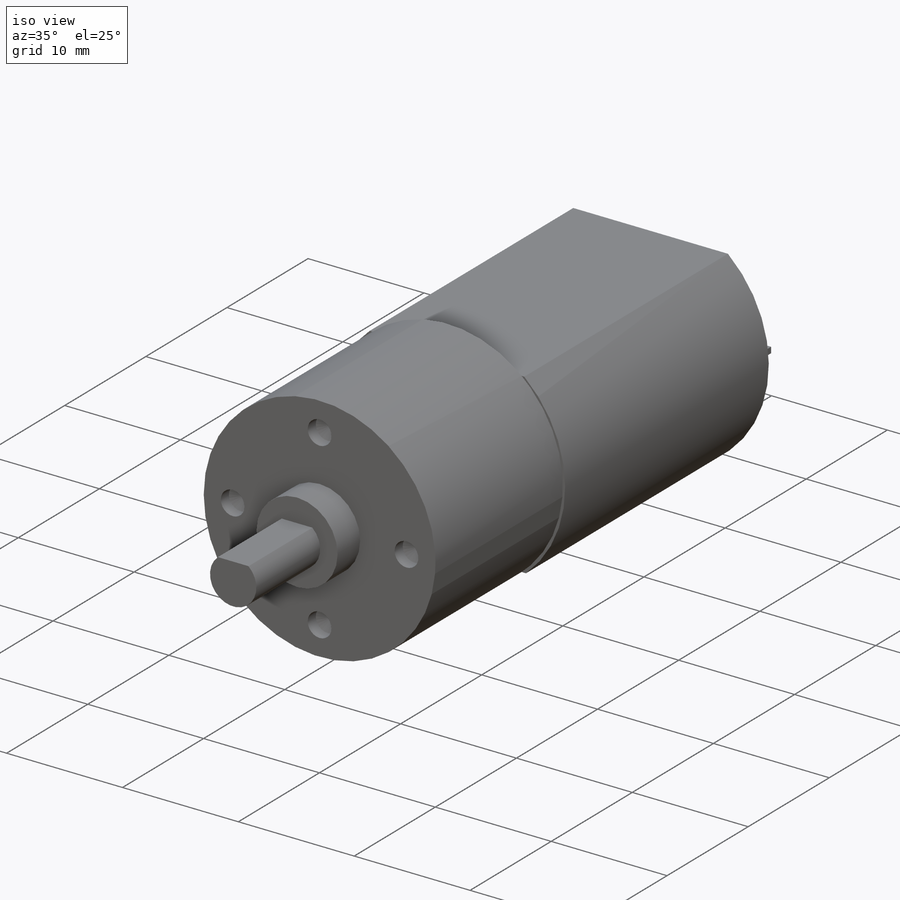
[diagram: iso view]
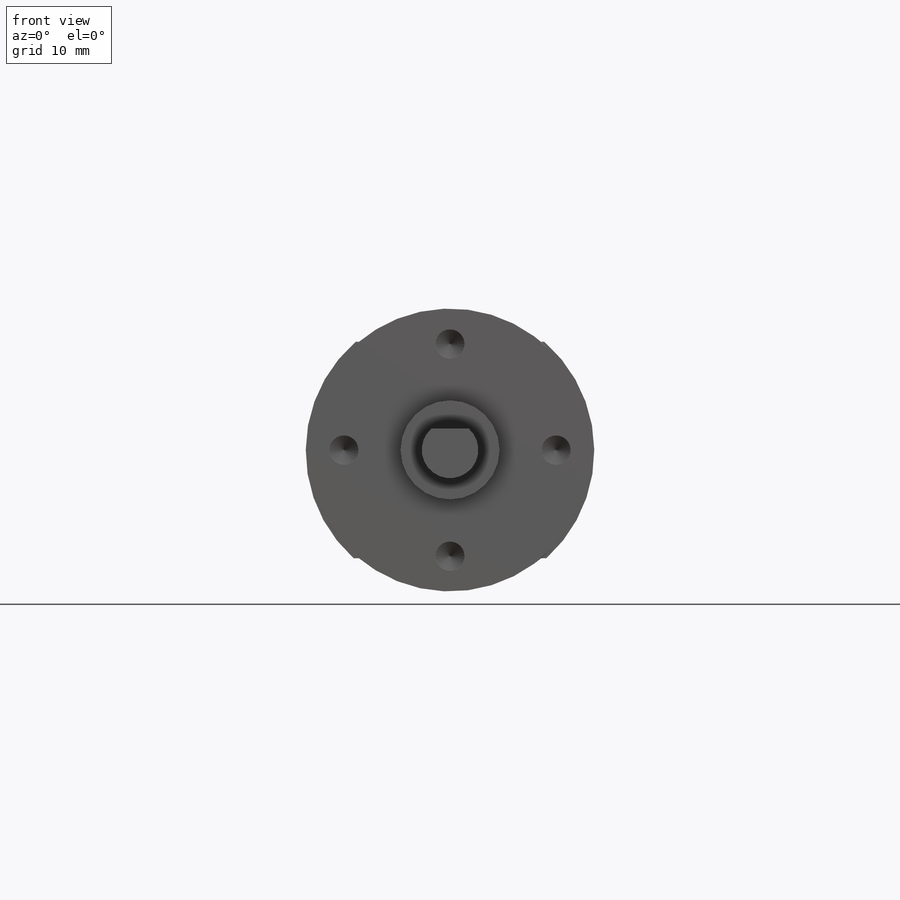
[diagram: front view]
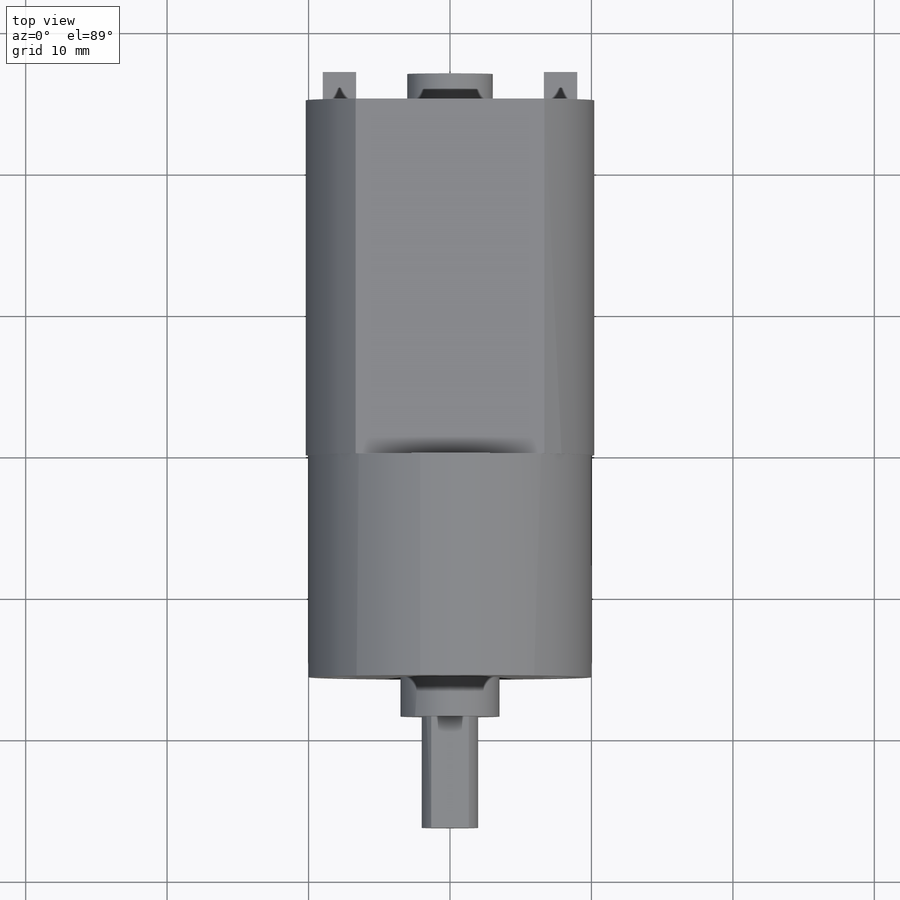
[diagram: top view]
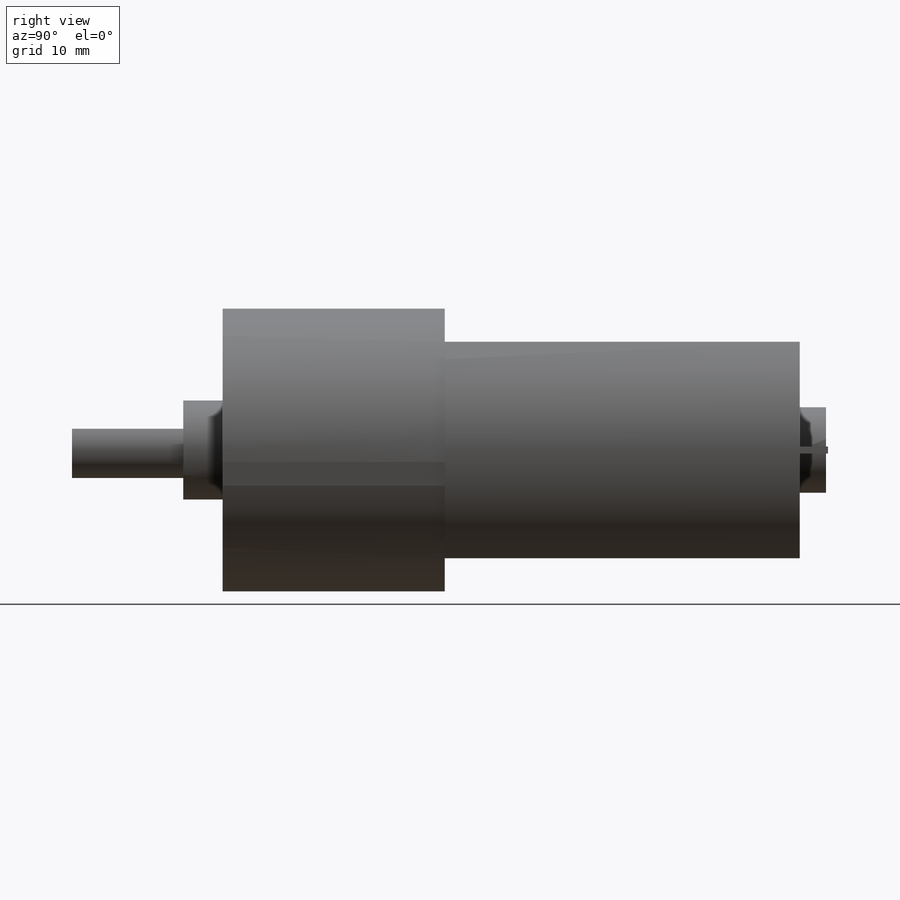
[diagram: right view]
SOLIDWORKS PART (.sldprt)
format: sldprt  version: not decoded by parser v0  size: 377,856 bytes
history: native  units: mm
features: sketch x8, extrude x6, thread x4, material x1, hole x1 (+12 scaffold rows collapsed)
feature tree (32):
  scaffold x12  (default folders/planes/origin — collapsed)
  material  "ASTM A36 Steel"
  sketch  "Sketch1"  dims[D3=12.0396mm D1=9.9822mm D2=12.0015mm D4=~5.02285mm]
  extrude  "GearBox"  Depth=15.7mm
  sketch  "Sketch3"  dims[c1.D1=15.3mm c1.D3=~8.469836mm c1.D2=7.65mm c2.D1=15.3mm c2.D3=20.4mm]
  extrude  "Motor"  Depth=25.1mm
  sketch  "Sketch4"  dims[D1=7.0mm]
  extrude  "Output_Shaft_Collar"  Depth=2.78mm
  sketch  "Sketch5"  dims[D1=4.0mm D2=3.5mm]
  extrude  "Output_Shaft"  Depth=7.87mm
  sketch  "Sketch6"  dims[D1=6.04mm]
  extrude  "Boss-Extrude11"  Depth=1.86mm
  sketch  "Sketch10"  dims[c1.D1=0.3mm c1.D2=0.3mm c1.D3=~1.29051mm c2.D3=90.0deg c3.D3=2.0mm c3.D4=~1.901909mm c3.D1=2.36mm c3.D2=0.5mm c4.D3=9.0mm]
  extrude  "Boss-Extrude13"  Depth=2mm
  hole  "M2.5x0.45 Tapped Hole1"  Diameter=2.05mm Depth=1mm
  sketch  "Sketch12"  dims[c1.D1=4.5mm c1.D2=4.5mm c2.D1=15.0mm c2.D2=7.5mm c2.D3=15.0mm c2.D4=7.5mm]
  sketch  "Sketch11"  dims[hole-wizard template sketch: 47 standard entries collapsed; hole parameters kept: c15.Tap Drill Depth=1.0mm c15.D3=~14.816244mm c15.Drill Angle=118.0deg]
  thread  "Hole Thread1"  Diameter=1mm  [1 undecoded]
  thread  "Hole Thread2"  Diameter=1mm  [1 undecoded]
  thread  "Hole Thread3"  Diameter=1mm  [1 undecoded]
  thread  "Hole Thread4"  Diameter=1mm  [1 undecoded]
decode coverage: 19 of 19 modeling features carry decoded parameters
note: ~ marks probable driven/reference dimensions
note: 4 parameter values undecoded
note: suppression state not decoded; provenance and decode notes live in map.json
